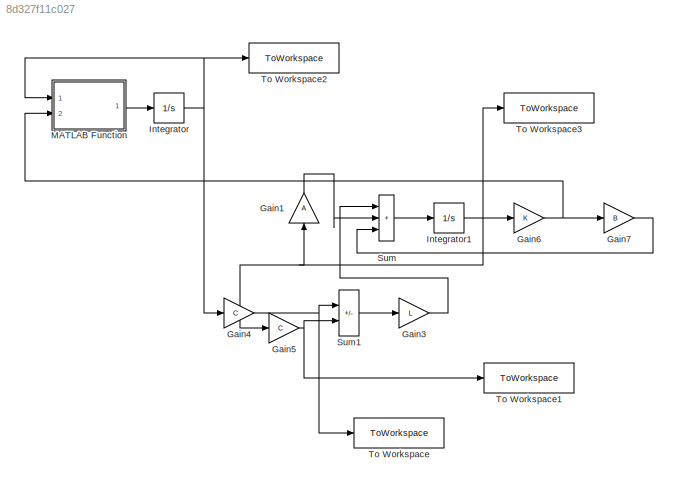
MODEL slx_8d327f11c027
KIND model
CONFIG AbsTol = auto
CONFIG EnableMultiTasking = off
CONFIG FixedStep = auto
CONFIG MaxStep = 0.001
CONFIG MinStep = auto
CONFIG RelTol = 1e-3
CONFIG SampleTimeConstraint = Unconstrained
CONFIG SolverName = VariableStepAuto
CONFIG StartTime = 0.0
CONFIG StopTime = 1
BLOCK [Gain] Gain1
  Gain = A
  Multiplication = Matrix(K*u)
  NameLocation = right
BLOCK [Gain] Gain3
  Gain = L
  Multiplication = Matrix(K*u)
BLOCK [Gain] Gain4
  Gain = C
  Multiplication = Matrix(K*u)
BLOCK [Gain] Gain5
  Gain = C
  Multiplication = Matrix(K*u)
BLOCK [Gain] Gain6
  Gain = K
  Multiplication = Matrix(K*u)
BLOCK [Gain] Gain7
  Gain = B
  Multiplication = Matrix(K*u)
BLOCK [Integrator] Integrator
  InitialCondition = [0;0;0.01;0;0.02;0]
  Ports = [1, 1]
BLOCK [Integrator] Integrator1
  InitialCondition = [0;0.01;0;0;0.02;0]
  Ports = [1, 1]
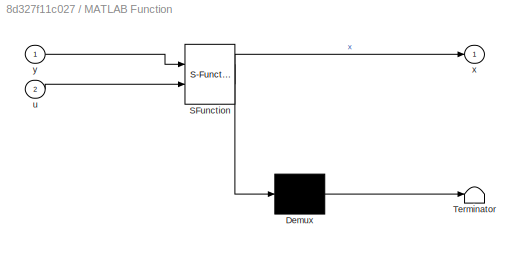
BLOCK [SubSystem] MATLAB Function
  ErrorFcn = Stateflow.Translate.translate
  PermitHierarchicalResolution = ExplicitOnly
  Ports = [2, 1]
  RequestExecContextInheritance = off
  SFBlockType = MATLAB Function
  TreatAsAtomicUnit = on
BLOCK [Demux] MATLAB Function/ Demux 
  Outputs = 1
  Ports = [1, 1]
BLOCK [S-Function] MATLAB Function/ SFunction 
  EnableBusSupport = on
  FunctionName = sf_sfun
  PortCounts = [2 2]
  Ports = [2, 2]
  SFcnIsStateOwnerBlock = off
  SFunctionDeploymentMode = off
  Tag = Stateflow S-Function 2
BLOCK [Terminator] MATLAB Function/ Terminator 
BLOCK [Inport] MATLAB Function/u
  Port = 2
BLOCK [Outport] MATLAB Function/x
BLOCK [Inport] MATLAB Function/y
BLOCK [Sum] Sum
  IconShape = rectangular
  Inputs = |+++
  Ports = [3, 1]
BLOCK [Sum] Sum1
  IconShape = rectangular
  Inputs = |-+
  Ports = [2, 1]
BLOCK [ToWorkspace] To Workspace
  FixptAsFi = on
  MaxDataPoints = inf
  Ports = [1]
  SampleTime = -1
  SaveFormat = Timeseries
  VariableName = y
BLOCK [ToWorkspace] To Workspace1
  FixptAsFi = on
  MaxDataPoints = inf
  Ports = [1]
  SampleTime = -1
  SaveFormat = Timeseries
  VariableName = hat_y
BLOCK [ToWorkspace] To Workspace2
  FixptAsFi = on
  MaxDataPoints = inf
  Ports = [1]
  SampleTime = -1
  SaveFormat = Timeseries
  VariableName = x
BLOCK [ToWorkspace] To Workspace3
  FixptAsFi = on
  MaxDataPoints = inf
  Ports = [1]
  SampleTime = -1
  SaveFormat = Timeseries
  VariableName = hat_x
LINE Gain1:1 -> Sum:2
LINE Gain3:1 -> Sum:1
NET Gain4:1 -> Sum1:1, To Workspace:1
NET Gain5:1 -> Sum1:2, To Workspace1:1
NET Gain6:1 -> Gain7:1, MATLAB Function:2
LINE Gain7:1 -> Sum:3
NET Integrator1:1 -> Gain1:1, Gain5:1, Gain6:1, To Workspace3:1
NET Integrator:1 -> Gain4:1, MATLAB Function:1, To Workspace2:1
LINE MATLAB Function:1 -> Integrator:1
LINE Sum1:1 -> Gain3:1
LINE Sum:1 -> Integrator1:1
note: NET lines group one-source signal fan-out (src -> all destinations, sorted); 1:1 wires keep LINE
CHART MATLAB Function states=1 transitions=1
  STATE_LABEL 'eML_blk_kernel()'
  STATE_LABEL 'SCRIPT:\nfunction x = fcn(y, u)\n    M = 10; %масса тележки\n    m1 = 1; %масса маятника 1\n    m2 = 2; %масса маятника 2\n    l1 = 2; %длина маятника 1\n    l2 = 1; %длина маятника 2\n    g = 10; %ускорение свпад\n    dxdt = zeros(6,1);\n    dxdt(1) = y(2);\n    dxdt(2) = -l1*m1*sin(y(3))*(y(5))^2/( M + m1*sin(y(3))^2 + m2*sin(y(4))^2 ) + m1*cos(y(3))*g*sin(y(3))/( M + m1*sin(y(3))^2 + m2*sin(y(4))^2 ) + l...<+1032ch>'
CHART  states=0 transitions=0
